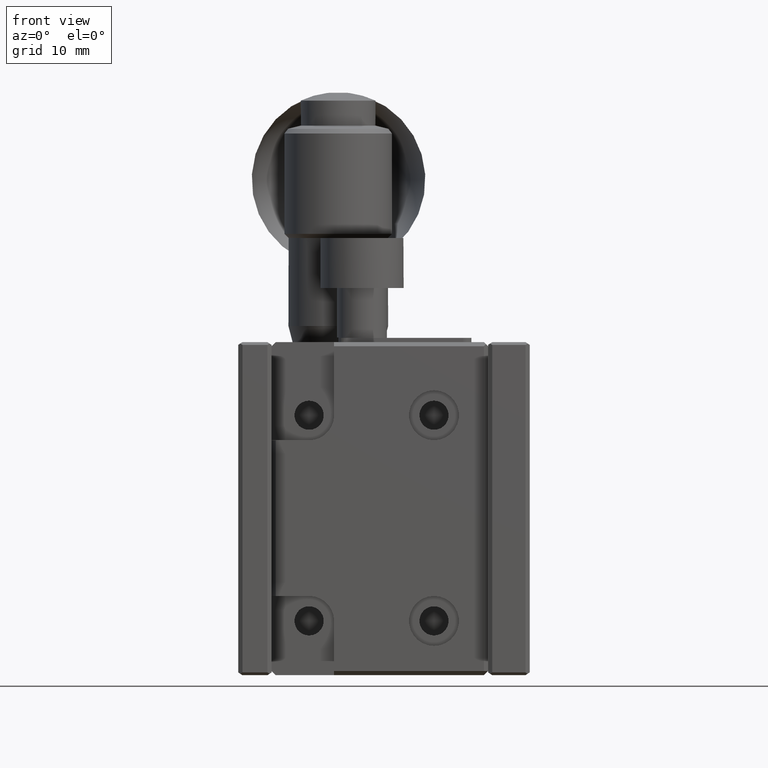
[diagram: clean part render]
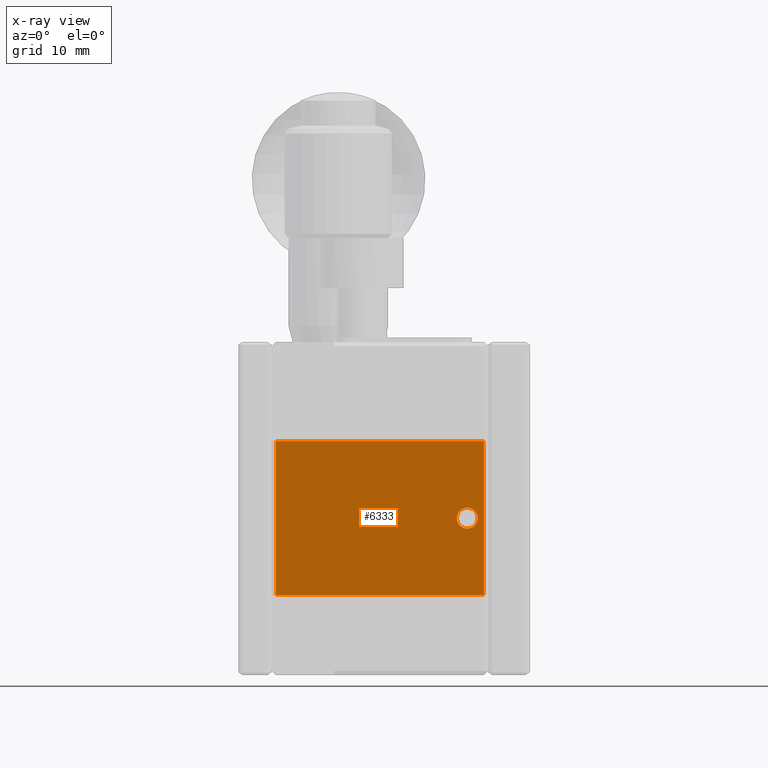
[diagram: x-ray — body ghosted, one internal face saturated and labeled with its STEP entity id]
A machine part, front view, then the same camera in x-ray: the body is ghosted and one INTERNAL B-rep face — a face not visible from any outside direction — is saturated and labeled: STEP entity #6333.
In plain terms, the highlighted planar face has unit normal (0, -1, 0).
Its self-contained STEP definition (entity closure, byte-faithful):
#6 = EDGE_CURVE ( 'NONE', #1932, #4509, #2154, .T. ) ;
#158 = AXIS2_PLACEMENT_3D ( 'NONE', #6393, #3636, #4293 ) ;
#182 = VERTEX_POINT ( 'NONE', #5324 ) ;
#239 = FACE_BOUND ( 'NONE', #4462, .T. ) ;
#283 = ORIENTED_EDGE ( 'NONE', *, *, #6, .F. ) ;
#322 = PLANE ( 'NONE',  #158 ) ;
#498 = CARTESIAN_POINT ( 'NONE',  ( 15.50000000000010125, -14.50000000000000000, -21.14999999999999858 ) ) ;
#822 = CARTESIAN_POINT ( 'NONE',  ( 17.50000000000019895, -14.50000000000000000, -11.90000000000000036 ) ) ;
#839 = CARTESIAN_POINT ( 'NONE',  ( 19.50000000000019895, -14.50000000000000000, -11.90000000000000036 ) ) ;
#932 = ORIENTED_EDGE ( 'NONE', *, *, #8592, .F. ) ;
#965 = CARTESIAN_POINT ( 'NONE',  ( -7.499999999999840128, -14.50000000000000000, -11.90000000000000036 ) ) ;
#976 = CARTESIAN_POINT ( 'NONE',  ( -7.499999999999840128, -14.50000000000000000, -30.39999999999999858 ) ) ;
#1504 = AXIS2_PLACEMENT_3D ( 'NONE', #498, #1768, #8410 ) ;
#1595 = CARTESIAN_POINT ( 'NONE',  ( 17.50000000000019895, -14.50000000000000000, -30.40000000000000213 ) ) ;
#1768 = DIRECTION ( 'NONE',  ( 0.000000000000000000, 1.000000000000000000, 0.000000000000000000 ) ) ;
#1932 = VERTEX_POINT ( 'NONE', #822 ) ;
#2028 = ORIENTED_EDGE ( 'NONE', *, *, #6294, .F. ) ;
#2064 = DIRECTION ( 'NONE',  ( -1.000000000000000000, -0.000000000000000000, -0.000000000000000000 ) ) ;
#2131 = DIRECTION ( 'NONE',  ( 1.000000000000000000, 0.000000000000000000, 0.000000000000000000 ) ) ;
#2154 = LINE ( 'NONE', #839, #5095 ) ;
#2825 = LINE ( 'NONE', #5488, #5414 ) ;
#2879 = EDGE_CURVE ( 'NONE', #3369, #4174, #2825, .T. ) ;
#2946 = CARTESIAN_POINT ( 'NONE',  ( -7.499999999999840128, -14.50000000000000000, -10.80000000000000071 ) ) ;
#2990 = EDGE_CURVE ( 'NONE', #182, #182, #7360, .T. ) ;
#3369 = VERTEX_POINT ( 'NONE', #976 ) ;
#3620 = VECTOR ( 'NONE', #6875, 1000.000000000000000 ) ;
#3636 = DIRECTION ( 'NONE',  ( 0.000000000000000000, -1.000000000000000000, 0.000000000000000000 ) ) ;
#4174 = VERTEX_POINT ( 'NONE', #1595 ) ;
#4293 = DIRECTION ( 'NONE',  ( 0.000000000000000000, -0.000000000000000000, -1.000000000000000000 ) ) ;
#4379 = LINE ( 'NONE', #2946, #3620 ) ;
#4462 = EDGE_LOOP ( 'NONE', ( #6971 ) ) ;
#4509 = VERTEX_POINT ( 'NONE', #965 ) ;
#4871 = FACE_OUTER_BOUND ( 'NONE', #8045, .T. ) ;
#4940 = LINE ( 'NONE', #7604, #5991 ) ;
#5069 = DIRECTION ( 'NONE',  ( 0.000000000000000000, 0.000000000000000000, 1.000000000000000000 ) ) ;
#5095 = VECTOR ( 'NONE', #2064, 1000.000000000000000 ) ;
#5324 = CARTESIAN_POINT ( 'NONE',  ( 15.50000000000010125, -14.50000000000000000, -19.89999999999999858 ) ) ;
#5414 = VECTOR ( 'NONE', #2131, 1000.000000000000000 ) ;
#5488 = CARTESIAN_POINT ( 'NONE',  ( 19.50000000000019895, -14.50000000000000000, -30.39999999999999858 ) ) ;
#5991 = VECTOR ( 'NONE', #5069, 1000.000000000000000 ) ;
#6294 = EDGE_CURVE ( 'NONE', #4509, #3369, #4379, .T. ) ;
#6333 = ADVANCED_FACE ( 'NONE', ( #4871, #239 ), #322, .F. ) ;
#6393 = CARTESIAN_POINT ( 'NONE',  ( 19.50000000000019895, -14.50000000000000000, -22.70000000000000284 ) ) ;
#6875 = DIRECTION ( 'NONE',  ( -0.000000000000000000, -0.000000000000000000, -1.000000000000000000 ) ) ;
#6971 = ORIENTED_EDGE ( 'NONE', *, *, #2990, .F. ) ;
#7360 = CIRCLE ( 'NONE', #1504, 1.250000000000001110 ) ;
#7604 = CARTESIAN_POINT ( 'NONE',  ( 17.50000000000019895, -14.50000000000000000, -10.80000000000000071 ) ) ;
#8045 = EDGE_LOOP ( 'NONE', ( #2028, #283, #932, #8609 ) ) ;
#8410 = DIRECTION ( 'NONE',  ( 0.000000000000000000, 0.000000000000000000, 1.000000000000000000 ) ) ;
#8592 = EDGE_CURVE ( 'NONE', #4174, #1932, #4940, .T. ) ;
#8609 = ORIENTED_EDGE ( 'NONE', *, *, #2879, .F. ) ;